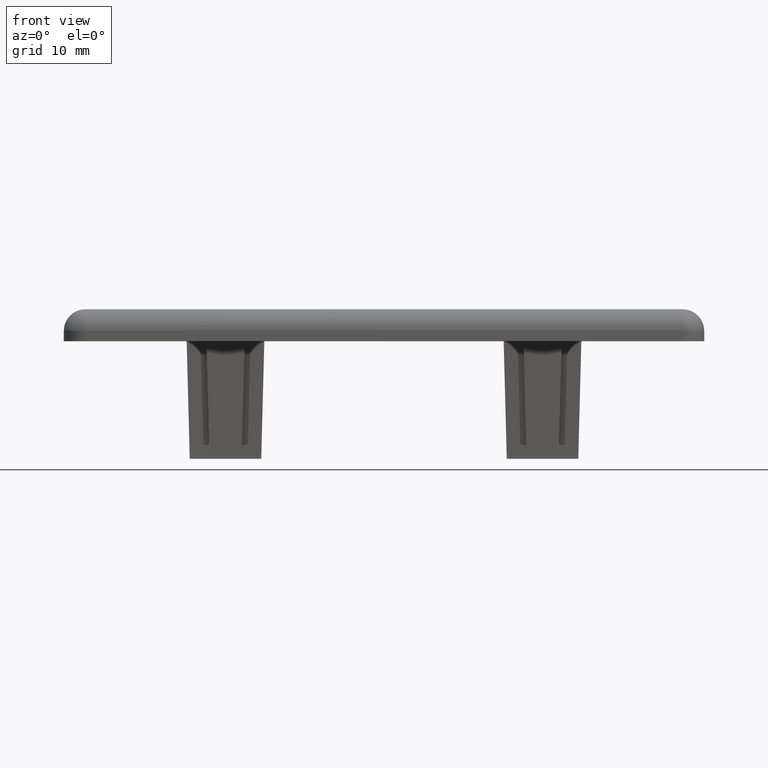
[diagram: clean part render]
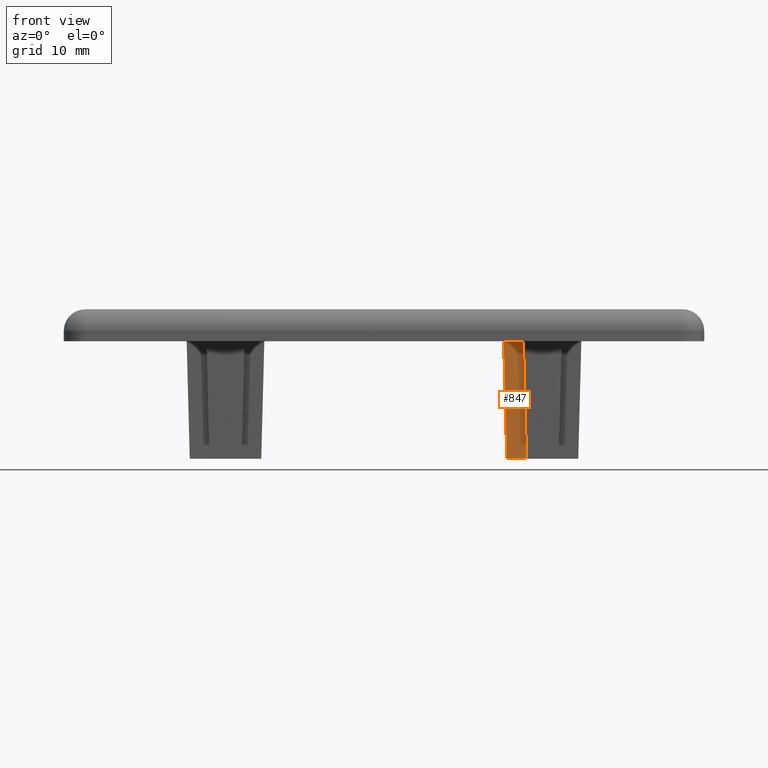
[diagram: same view with one face highlighted and labeled with its STEP entity id]
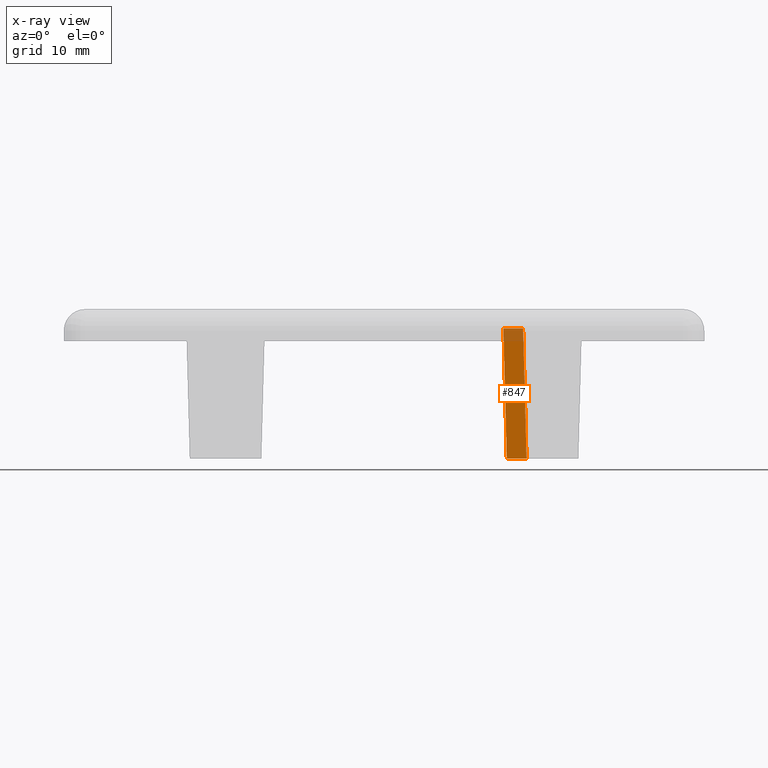
[diagram: x-ray of the same camera — body ghosted, the highlighted face saturated]
A machine part, front view. The second image highlights one B-rep face of the part: STEP entity #847.
The next image is the same camera in x-ray: the body ghosted, the highlighted face saturated — about 10% of this face is hidden behind the body in this view.
In plain terms, the highlighted planar face has unit normal (0, -0.9997, -0.0262).
Its self-contained STEP definition (entity closure, byte-faithful):
#65=FACE_OUTER_BOUND('',#114,.T.);
#114=EDGE_LOOP('',(#643,#644,#645,#646));
#153=LINE('',#1196,#257);
#205=LINE('',#1300,#309);
#206=LINE('',#1303,#310);
#207=LINE('',#1304,#311);
#257=VECTOR('',#954,1.85);
#309=VECTOR('',#1042,12.2083627041776);
#310=VECTOR('',#1045,1.85);
#311=VECTOR('',#1046,12.2083627041776);
#361=VERTEX_POINT('',#1193);
#362=VERTEX_POINT('',#1195);
#396=VERTEX_POINT('',#1298);
#397=VERTEX_POINT('',#1302);
#437=EDGE_CURVE('',#361,#362,#153,.T.);
#489=EDGE_CURVE('',#396,#361,#205,.T.);
#490=EDGE_CURVE('',#396,#397,#206,.T.);
#491=EDGE_CURVE('',#397,#362,#207,.F.);
#643=ORIENTED_EDGE('',*,*,#489,.F.);
#644=ORIENTED_EDGE('',*,*,#490,.T.);
#645=ORIENTED_EDGE('',*,*,#491,.T.);
#646=ORIENTED_EDGE('',*,*,#437,.F.);
#810=PLANE('',#898);
#847=ADVANCED_FACE('',(#65),#810,.T.);
#898=AXIS2_PLACEMENT_3D('',#1301,#1043,#1044);
#954=DIRECTION('',(-1.,0.,0.));
#1042=DIRECTION('',(0.0261679842649793,0.0261679842649793,-0.99931500198837));
#1043=DIRECTION('center_axis',(0.,-0.999657324975557,-0.0261769483078732));
#1044=DIRECTION('ref_axis',(1.,0.,0.));
#1045=DIRECTION('',(-1.,0.,0.));
#1046=DIRECTION('',(-0.0261679842649793,-0.0261679842649793,0.99931500198837));
#1193=CARTESIAN_POINT('',(13.35,-1.5,-11.));
#1195=CARTESIAN_POINT('',(11.5,-1.5,-11.));
#1196=CARTESIAN_POINT('',(11.5,-1.5,-11.));
#1298=CARTESIAN_POINT('',(13.0305317568559,-1.81946824314408,1.2));
#1300=CARTESIAN_POINT('',(13.0616173376455,-1.78838266235454,0.0128895632943864));
#1301=CARTESIAN_POINT('Origin',(11.5,-1.7879464313866,-0.00376942526886945));
#1302=CARTESIAN_POINT('',(11.1805317568559,-1.81946824314408,1.2));
#1303=CARTESIAN_POINT('',(5.75,-1.81946824314408,1.2));
#1304=CARTESIAN_POINT('',(11.2132778888917,-1.78672211110835,-0.0505243303815023));